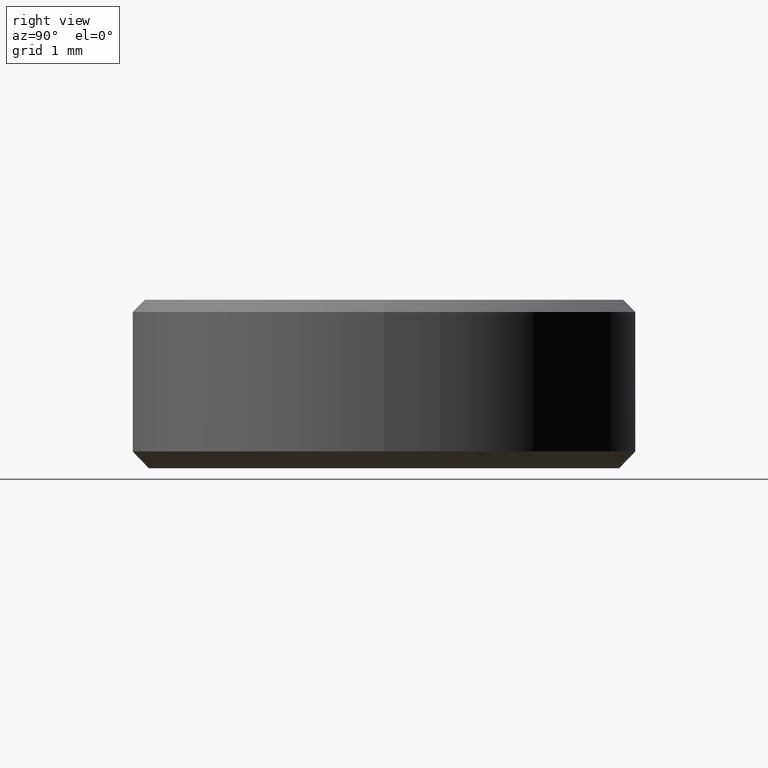
[diagram: clean part render]
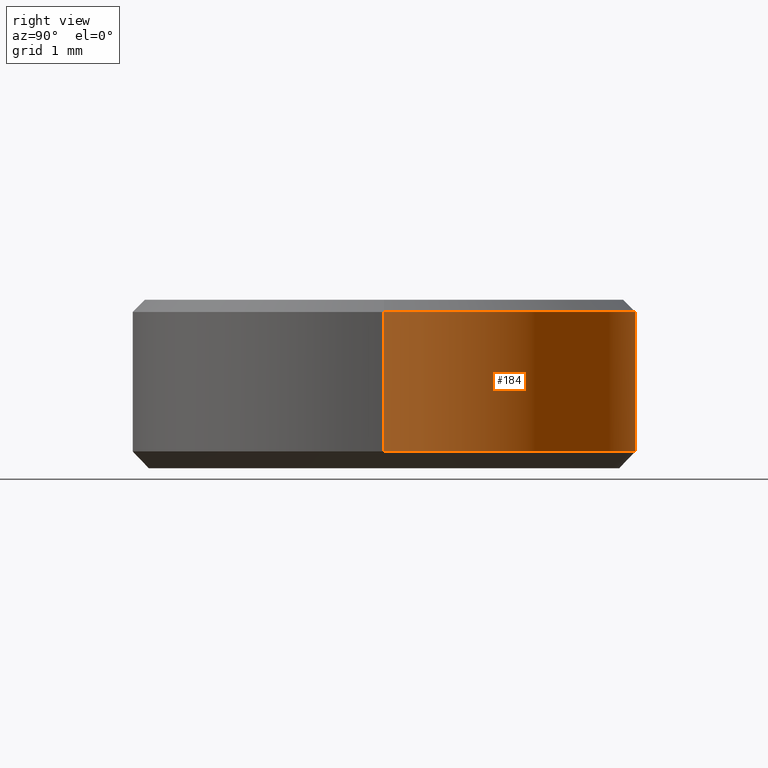
[diagram: same view with one face highlighted and labeled with its STEP entity id]
A machine part, right view. The second image highlights one B-rep face of the part: STEP entity #184.
In plain terms, the highlighted cylindrical surface (partial cylindrical patch) has radius 3 mm, axis along (-0, -0, 1).
Its self-contained STEP definition (entity closure, byte-faithful):
#11 = DIRECTION ( 'NONE',  ( 1.000000000000000000, 0.000000000000000000, 0.000000000000000000 ) ) ;
#14 = CARTESIAN_POINT ( 'NONE',  ( -3.000000000000000000, 3.673940397442059868E-16, 1.860000000000000542 ) ) ;
#25 = CIRCLE ( 'NONE', #31, 3.000000000000000000 ) ;
#26 = CARTESIAN_POINT ( 'NONE',  ( 0.000000000000000000, 0.000000000000000000, 1.500000000000000000 ) ) ;
#31 = AXIS2_PLACEMENT_3D ( 'NONE', #78, #39, #127 ) ;
#39 = DIRECTION ( 'NONE',  ( -0.000000000000000000, -0.000000000000000000, 1.000000000000000000 ) ) ;
#48 = LINE ( 'NONE', #144, #244 ) ;
#51 = EDGE_CURVE ( 'NONE', #114, #187, #25, .T. ) ;
#55 = ORIENTED_EDGE ( 'NONE', *, *, #193, .F. ) ;
#57 = VERTEX_POINT ( 'NONE', #14 ) ;
#58 = DIRECTION ( 'NONE',  ( 0.000000000000000000, 0.000000000000000000, -1.000000000000000000 ) ) ;
#68 = VECTOR ( 'NONE', #239, 1000.000000000000000 ) ;
#78 = CARTESIAN_POINT ( 'NONE',  ( 0.000000000000000000, 0.000000000000000000, 0.2000000000000020373 ) ) ;
#91 = DIRECTION ( 'NONE',  ( -1.000000000000000000, 0.000000000000000000, 0.000000000000000000 ) ) ;
#93 = AXIS2_PLACEMENT_3D ( 'NONE', #26, #238, #11 ) ;
#96 = CARTESIAN_POINT ( 'NONE',  ( -3.000000000000000000, 3.673940397442059868E-16, 0.2000000000000020373 ) ) ;
#107 = ORIENTED_EDGE ( 'NONE', *, *, #240, .T. ) ;
#114 = VERTEX_POINT ( 'NONE', #150 ) ;
#116 = CARTESIAN_POINT ( 'NONE',  ( 3.000000000000000000, 0.000000000000000000, 1.500000000000000000 ) ) ;
#127 = DIRECTION ( 'NONE',  ( 1.000000000000000000, 0.000000000000000000, 0.000000000000000000 ) ) ;
#142 = EDGE_LOOP ( 'NONE', ( #224, #242, #107, #55 ) ) ;
#144 = CARTESIAN_POINT ( 'NONE',  ( -3.000000000000000000, 3.673940397442059868E-16, 1.500000000000000000 ) ) ;
#150 = CARTESIAN_POINT ( 'NONE',  ( 3.000000000000000000, 0.000000000000000000, 0.2000000000000020373 ) ) ;
#164 = AXIS2_PLACEMENT_3D ( 'NONE', #223, #58, #91 ) ;
#181 = CIRCLE ( 'NONE', #164, 3.000000000000000000 ) ;
#184 = ADVANCED_FACE ( 'NONE', ( #197 ), #218, .T. ) ;
#187 = VERTEX_POINT ( 'NONE', #96 ) ;
#193 = EDGE_CURVE ( 'NONE', #114, #248, #256, .T. ) ;
#197 = FACE_OUTER_BOUND ( 'NONE', #142, .T. ) ;
#218 = CYLINDRICAL_SURFACE ( 'NONE', #93, 3.000000000000000000 ) ;
#220 = EDGE_CURVE ( 'NONE', #187, #57, #48, .T. ) ;
#223 = CARTESIAN_POINT ( 'NONE',  ( 0.000000000000000000, 0.000000000000000000, 1.860000000000000542 ) ) ;
#224 = ORIENTED_EDGE ( 'NONE', *, *, #51, .T. ) ;
#225 = CARTESIAN_POINT ( 'NONE',  ( 3.000000000000000000, 0.000000000000000000, 1.860000000000000542 ) ) ;
#238 = DIRECTION ( 'NONE',  ( -0.000000000000000000, -0.000000000000000000, 1.000000000000000000 ) ) ;
#239 = DIRECTION ( 'NONE',  ( -0.000000000000000000, -0.000000000000000000, 1.000000000000000000 ) ) ;
#240 = EDGE_CURVE ( 'NONE', #57, #248, #181, .T. ) ;
#242 = ORIENTED_EDGE ( 'NONE', *, *, #220, .T. ) ;
#244 = VECTOR ( 'NONE', #258, 1000.000000000000000 ) ;
#248 = VERTEX_POINT ( 'NONE', #225 ) ;
#256 = LINE ( 'NONE', #116, #68 ) ;
#258 = DIRECTION ( 'NONE',  ( -0.000000000000000000, -0.000000000000000000, 1.000000000000000000 ) ) ;